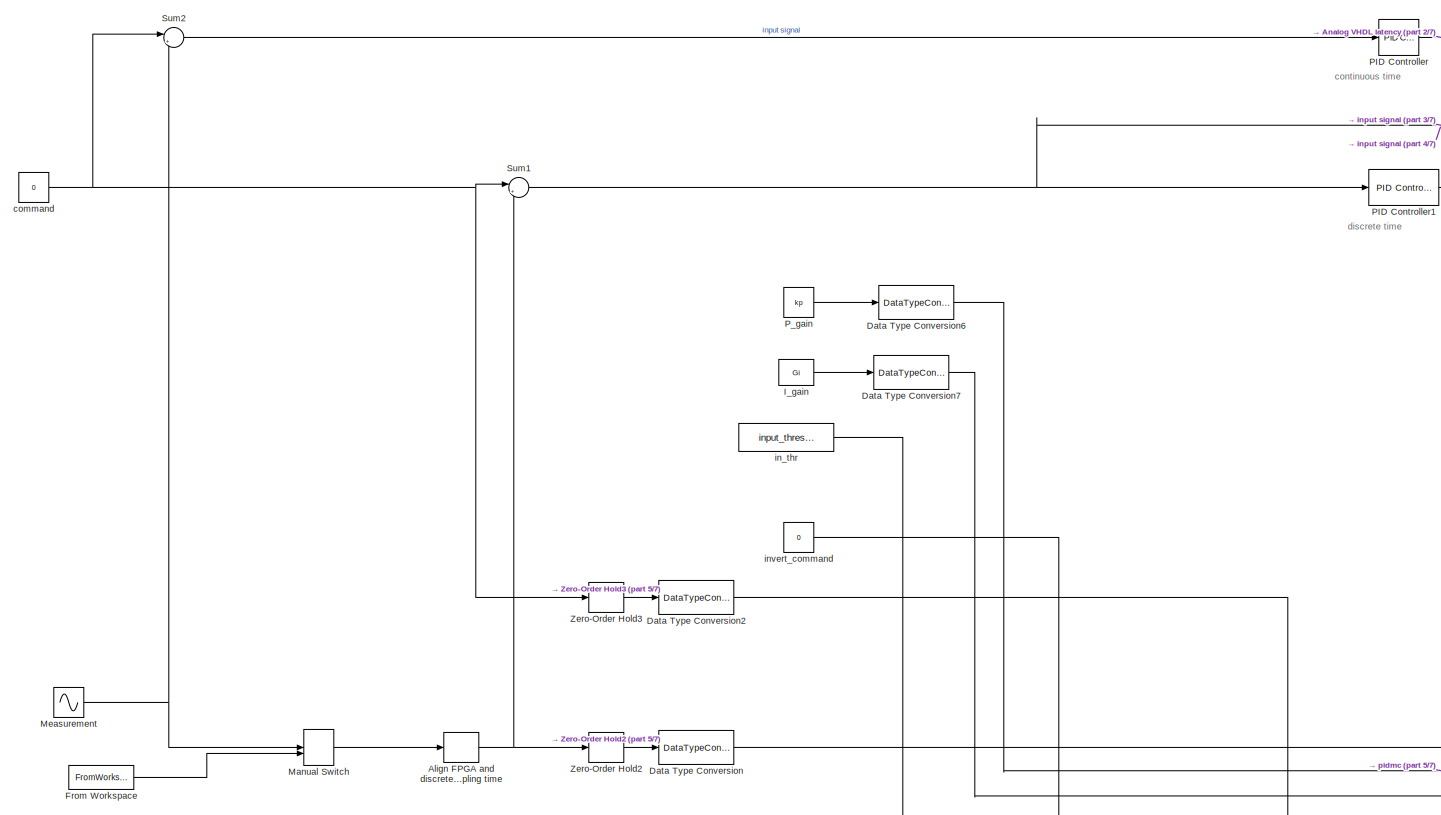
[diagram: root canvas - part 1/7, top left region]
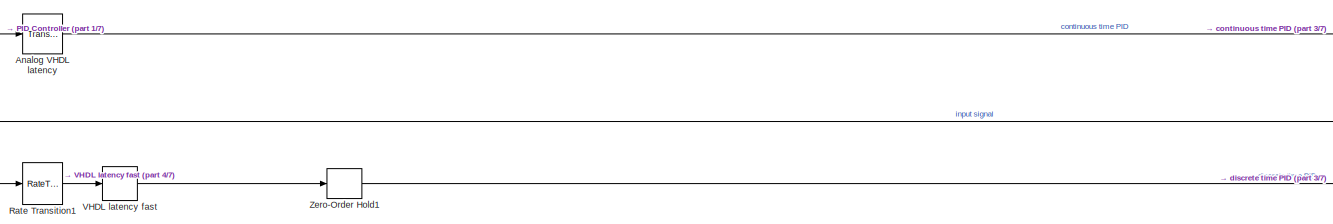
[diagram: root canvas - part 2/7, top center region]
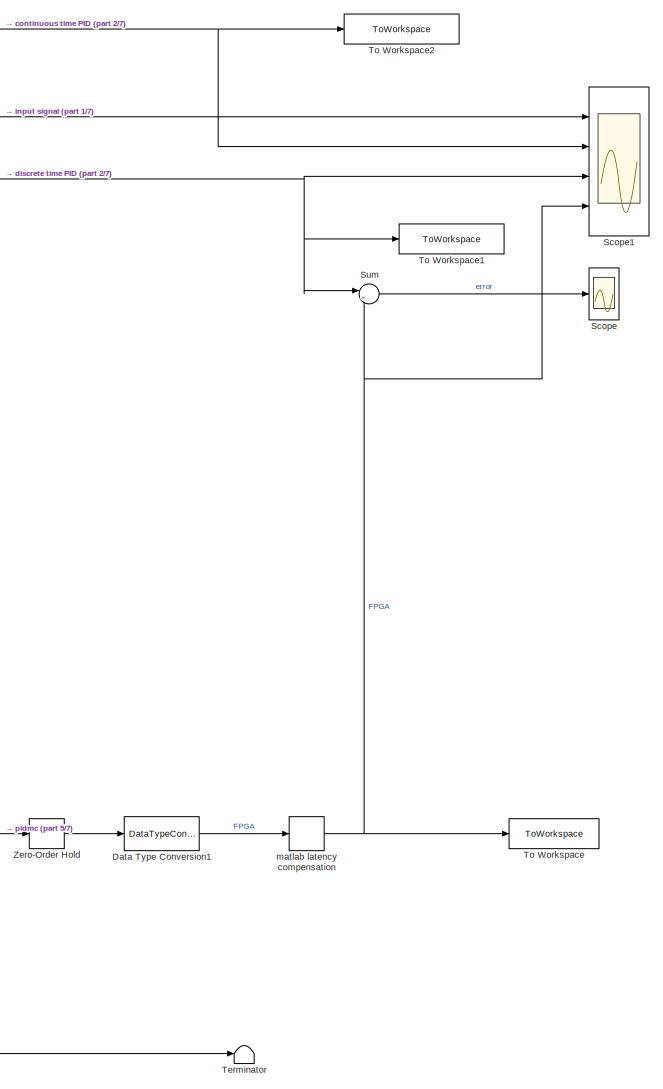
[diagram: root canvas - part 3/7, middle right region]
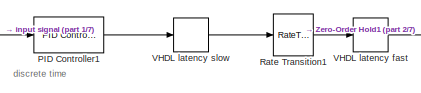
[diagram: root canvas - part 4/7, top center region]
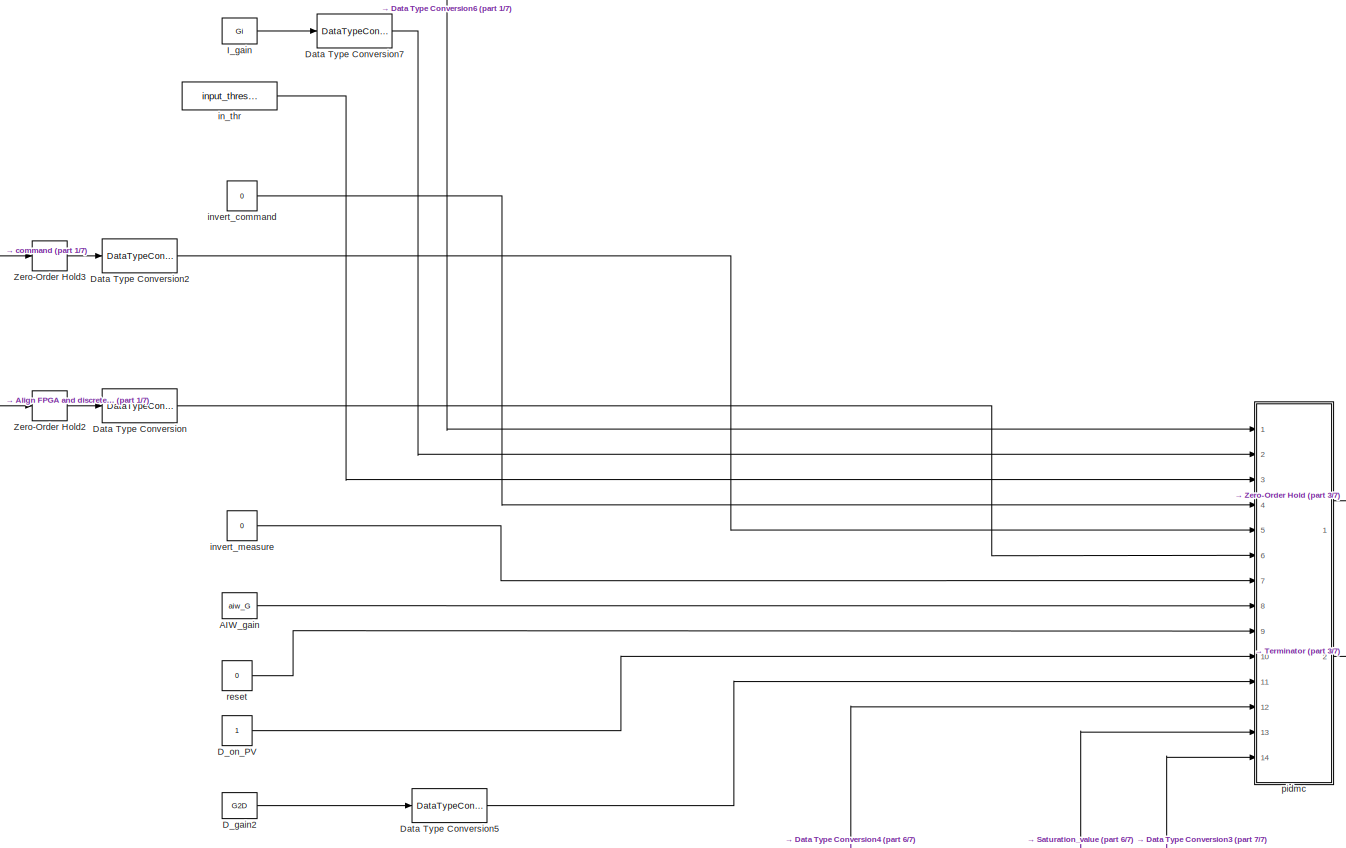
[diagram: root canvas - part 5/7, middle left region]
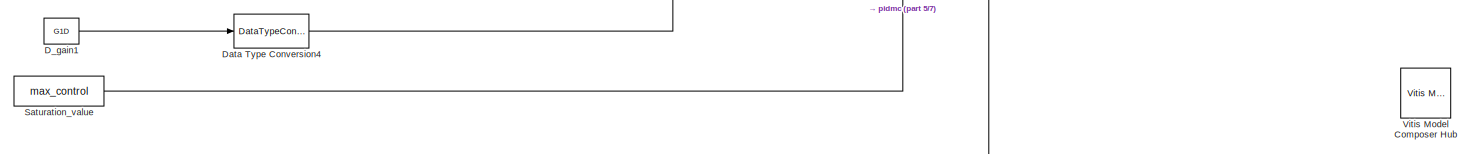
[diagram: root canvas - part 6/7, bottom center region]
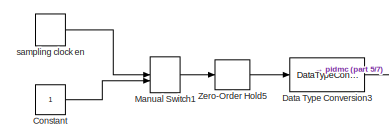
[diagram: root canvas - part 7/7, bottom left region]
MODEL slx_d7b5d70c6784
KIND model
CONFIG AbsTol = auto
CONFIG EnableMultiTasking = off
CONFIG FixedStep = auto
CONFIG MaxStep = auto
CONFIG MinStep = auto
CONFIG RelTol = 1e-3
CONFIG SampleTimeConstraint = Unconstrained
CONFIG SolverName = VariableStepAuto
CONFIG StartTime = 0.0
CONFIG StopTime = 0.05
BLOCK [Constant] AIW_gain
  OutDataTypeStr = fixdt(1,32,30)
  SampleTime = 1/(FPGA_CLK_MHZ*1.e6)
  Value = aiw_G
BLOCK [ZeroOrderHold] Align FPGA and discrete PID sampling time
  SampleTime = Ts
BLOCK [TransportDelay] Analog VHDL latency
  DelayTime = (VHDL_fast_latency_cycles)/maxSampleRate+(VHDL_slow_latency_cycles+matlab_discrete_PID_latency)/SampleRate
  Ports = [1, 1]
BLOCK [Constant] Constant
BLOCK [Constant] D_gain1
  OutDataTypeStr = double
  SampleTime = 1/(FPGA_CLK_MHZ*1.e6)
  Value = G1D
BLOCK [Constant] D_gain2
  OutDataTypeStr = double
  SampleTime = 1/(FPGA_CLK_MHZ*1.e6)
  Value = G2D
BLOCK [Constant] D_on_PV
  OutDataTypeStr = boolean
  SampleTime = 1/(FPGA_CLK_MHZ*1.e6)
BLOCK [DataTypeConversion] Data Type Conversion
  RndMeth = Floor
  SaturateOnIntegerOverflow = off
BLOCK [DataTypeConversion] Data Type Conversion1
  RndMeth = Floor
  SaturateOnIntegerOverflow = off
BLOCK [DataTypeConversion] Data Type Conversion2
  RndMeth = Floor
  SaturateOnIntegerOverflow = off
BLOCK [DataTypeConversion] Data Type Conversion3
  RndMeth = Floor
  SaturateOnIntegerOverflow = off
BLOCK [DataTypeConversion] Data Type Conversion4
  RndMeth = Floor
  SaturateOnIntegerOverflow = off
BLOCK [DataTypeConversion] Data Type Conversion5
  RndMeth = Floor
  SaturateOnIntegerOverflow = off
BLOCK [DataTypeConversion] Data Type Conversion6
  RndMeth = Floor
  SaturateOnIntegerOverflow = off
BLOCK [DataTypeConversion] Data Type Conversion7
  RndMeth = Floor
  SaturateOnIntegerOverflow = off
BLOCK [FromWorkspace] From Workspace
  Interpolate = off
  OutputAfterFinalValue = Setting to zero
  SampleTime = Ts
  VariableName = pidin
BLOCK [Constant] I_gain
  OutDataTypeStr = double
  SampleTime = 1/(FPGA_CLK_MHZ*1.e6)
  Value = Gi
BLOCK [ManualSwitch] Manual Switch
  CurrentSetting = 0
BLOCK [ManualSwitch] Manual Switch1
BLOCK [Sin] Measurement
  Amplitude = 0.01
  Frequency = 2*pi*21
  Phase = 0*pi
  Ports = [0, 1]
  SampleTime = 0
BLOCK [Reference] PID Controller  REF=slpidlib/PID Controller
  Ports = [1, 1]
  SourceBlock = slpidlib/PID Controller
  SourceProductBaseCode = SL
  SourceType = PID 1dof
BLOCK [Reference] PID Controller1  REF=slpidlib/PID Controller
  Ports = [1, 1]
  SourceBlock = slpidlib/PID Controller
  SourceProductBaseCode = SL
  SourceType = PID 1dof
BLOCK [Constant] P_gain
  OutDataTypeStr = double
  SampleTime = 1/(FPGA_CLK_MHZ*1.e6)
  Value = kp
BLOCK [RateTransition] Rate Transition1
  OutPortSampleTime = 1/maxSampleRate
BLOCK [Constant] Saturation_value
  OutDataTypeStr = fixdt(1,32,30)
  SampleTime = 1/(FPGA_CLK_MHZ*1.e6)
  Value = max_control
BLOCK [Scope] Scope
  Floating = off
  NumInputPorts = 1
  Ports = [1]
  ScopeSpecificationString = Simulink.scopes.TimeScopeBlockCfg('CurrentConfiguration', extmgr.ConfigurationSet(extmgr.Configuration('Core','General UI',true),extmgr.Configuration('Core','Source UI',true),extmgr.Configuration('Sources','WiredSimulink',true,'DataLoggingVariableName','ScopeData1'),extmgr.Configuration('Visuals','Time Domain',true,'SerializedDisplays',{struct('MinYLimReal','-0.00000000006','MaxYLimReal','0.000000...<+1512ch>
BLOCK [Scope] Scope1
  Floating = off
  NumInputPorts = 4
  Ports = [4]
  ScopeSpecificationString = Simulink.scopes.TimeScopeBlockCfg('CurrentConfiguration', extmgr.ConfigurationSet(extmgr.Configuration('Core','General UI',true),extmgr.Configuration('Core','Source UI',true),extmgr.Configuration('Sources','WiredSimulink',true),extmgr.Configuration('Visuals','Time Domain',true,'SerializedDisplays',{struct('MinYLimReal','-0.10553','MaxYLimReal','0.11555','YLabelReal','','MinYLimMag','0.00000','MaxY...<+1569ch>
BLOCK [Sum] Sum
  Inputs = |+-
  Ports = [2, 1]
BLOCK [Sum] Sum1
  Inputs = |+-
  Ports = [2, 1]
BLOCK [Sum] Sum2
  Inputs = |+-
  Ports = [2, 1]
BLOCK [Terminator] Terminator
BLOCK [ToWorkspace] To Workspace
  Decimation = 1.e6*FPGA_CLK_MHZ/SampleRate
  FixptAsFi = on
  MaxDataPoints = inf
  Ports = [1]
  SampleTime = -1
  VariableName = FPGA_sim
BLOCK [ToWorkspace] To Workspace1
  Decimation = 1.e6*FPGA_CLK_MHZ/SampleRate
  FixptAsFi = on
  MaxDataPoints = inf
  Ports = [1]
  SampleTime = -1
  VariableName = idealPID_discrete
BLOCK [ToWorkspace] To Workspace2
  FixptAsFi = on
  MaxDataPoints = inf
  Ports = [1]
  SampleTime = -1
  VariableName = idealPID_continuous
BLOCK [Delay] VHDL latency fast
  DelayLength = VHDL_fast_latency_cycles
  InputPortMap = u0
  Ports = [1, 1]
BLOCK [Delay] VHDL latency slow
  DelayLength = VHDL_slow_latency_cycles
  InputPortMap = u0
  Ports = [1, 1]
BLOCK [Reference] Vitis Model Composer Hub  REF=vmcUtilities/Vitis Model Composer Hub
  Ports = []
  SourceBlock = vmcUtilities/Vitis Model Composer Hub
  SourceType = VMC Hub
  Tag = genX
  UserDataPersistent = on
BLOCK [ZeroOrderHold] Zero-Order Hold
  SampleTime = 1/(FPGA_CLK_MHZ*1.e6)
BLOCK [ZeroOrderHold] Zero-Order Hold1
  SampleTime = 1/(FPGA_CLK_MHZ*1.e6)
BLOCK [ZeroOrderHold] Zero-Order Hold2
  SampleTime = 1/(FPGA_CLK_MHZ*1.e6)
BLOCK [ZeroOrderHold] Zero-Order Hold3
  SampleTime = 1/(FPGA_CLK_MHZ*1.e6)
BLOCK [ZeroOrderHold] Zero-Order Hold5
  SampleTime = 1/(FPGA_CLK_MHZ*1.e6)
BLOCK [Constant] command
  OutDataTypeStr = double
  SampleTime = 0
  Value = 0
BLOCK [Constant] in_thr
  OutDataTypeStr = fixdt(1,32,30)
  SampleTime = 1/(FPGA_CLK_MHZ*1.e6)
  Value = input_threshold
BLOCK [Constant] invert_command
  OutDataTypeStr = boolean
  SampleTime = 1/(FPGA_CLK_MHZ*1.e6)
  Value = 0
BLOCK [Constant] invert_measure
  OutDataTypeStr = boolean
  SampleTime = 1/(FPGA_CLK_MHZ*1.e6)
  Value = 0
BLOCK [Delay] matlab latency compensation
  DelayLength = matlab_discrete_PID_latency*FPGA_CLK_MHZ*1.e6/SampleRate
  InputPortMap = u0
  Ports = [1, 1]
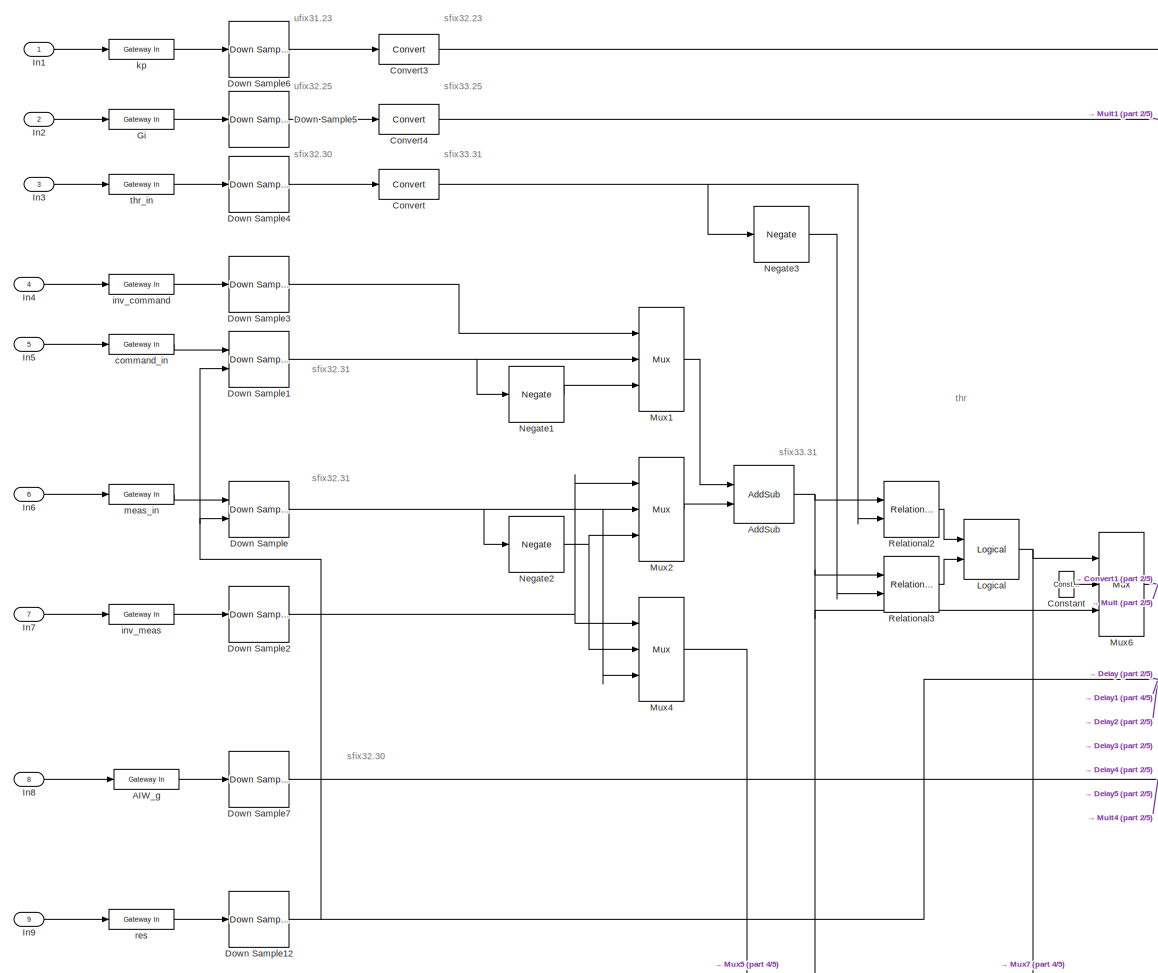
[diagram: pidmc - part 1/5, top left region]
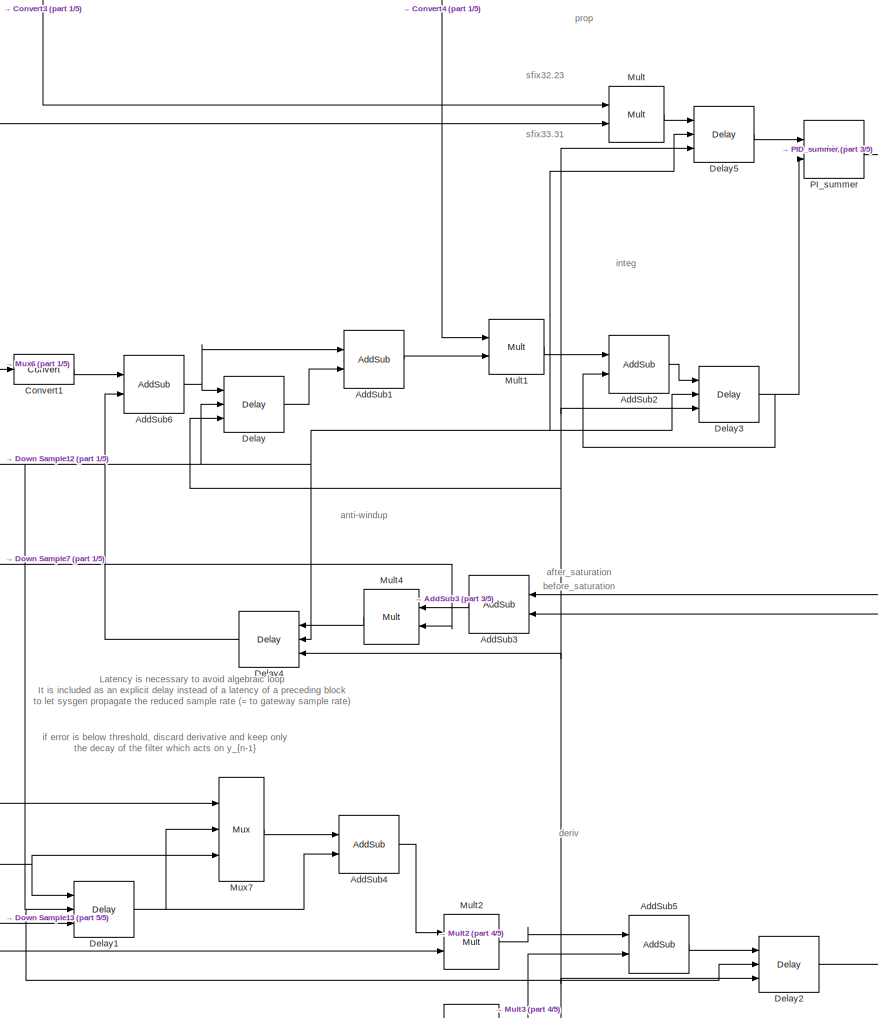
[diagram: pidmc - part 2/5, central region]
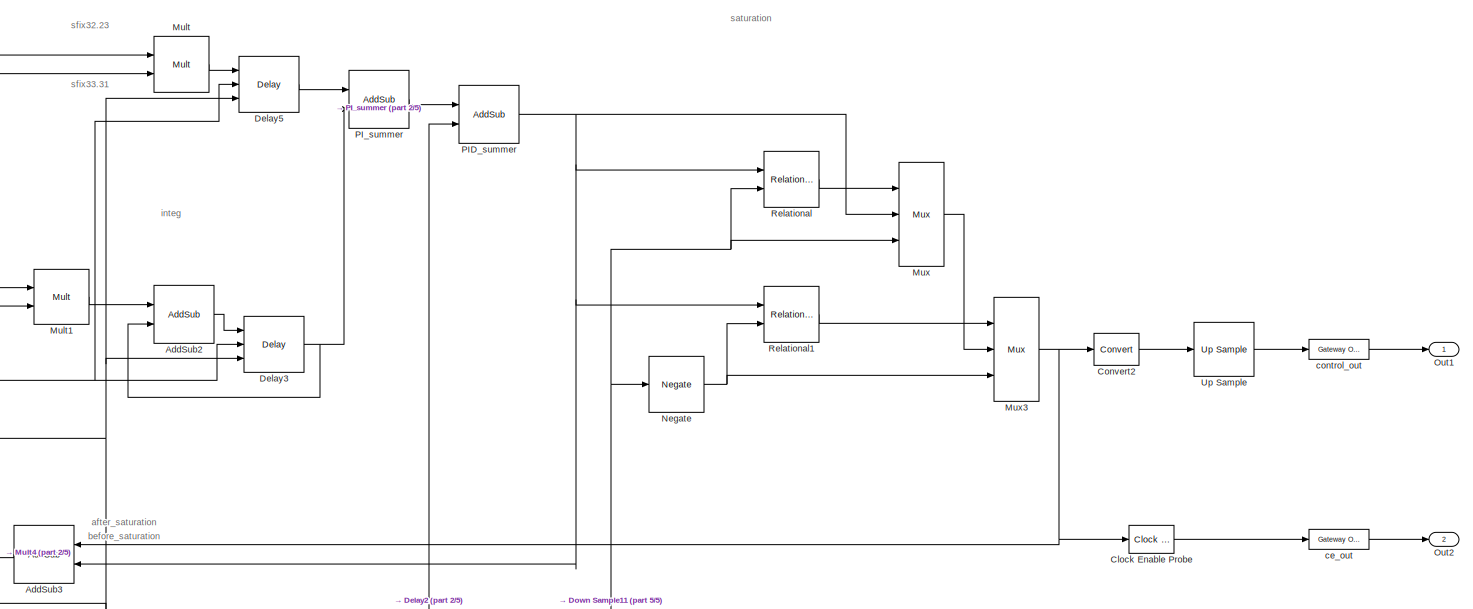
[diagram: pidmc - part 3/5, middle right region]
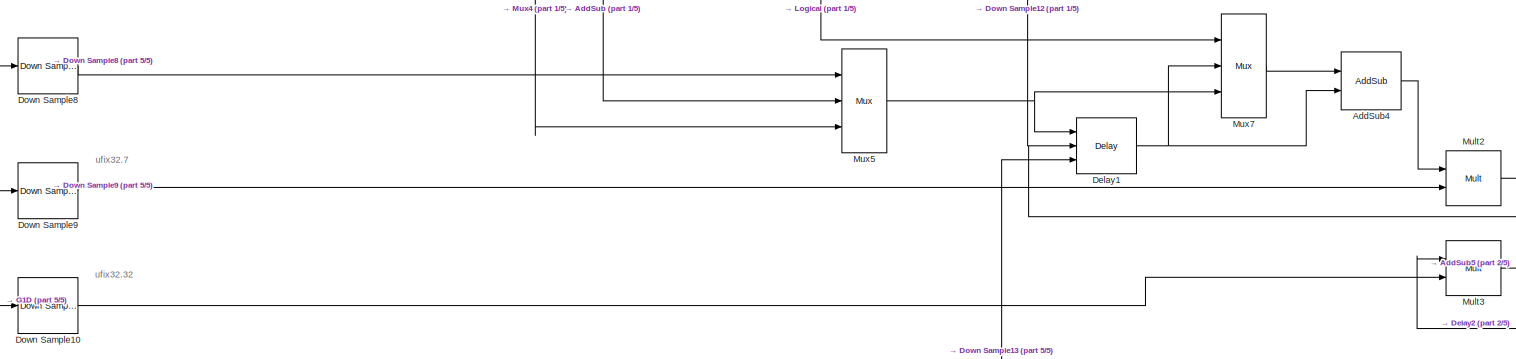
[diagram: pidmc - part 4/5, bottom left region]
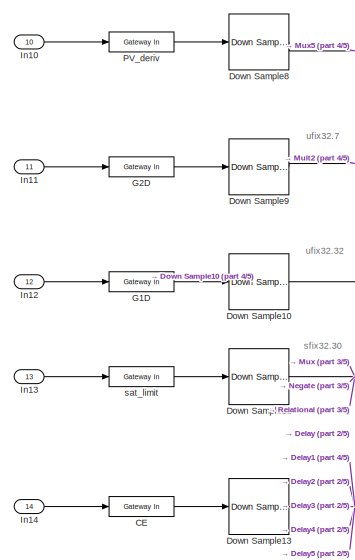
[diagram: pidmc - part 5/5, bottom left region]
BLOCK [SubSystem] pidmc
  Ports = [14, 2]
  RequestExecContextInheritance = off
BLOCK [Reference] pidmc/AIW_g  REF=hdlBasic/Gateway In
  Ports = [1, 1]
  SourceBlock = hdlBasic/Gateway In
  SourceType = Gateway In Block
BLOCK [Reference] pidmc/AddSub  REF=hdlBasic/AddSub
  Ports = [2, 1]
  SourceBlock = hdlBasic/AddSub
  SourceType = Adder/Subtracter Block
BLOCK [Reference] pidmc/AddSub1  REF=hdlBasic/AddSub
  Ports = [2, 1]
  SourceBlock = hdlBasic/AddSub
  SourceType = Adder/Subtracter Block
BLOCK [Reference] pidmc/AddSub2  REF=hdlBasic/AddSub
  Ports = [2, 1]
  SourceBlock = hdlBasic/AddSub
  SourceType = Adder/Subtracter Block
BLOCK [Reference] pidmc/AddSub3  REF=hdlBasic/AddSub
  Ports = [2, 1]
  SourceBlock = hdlBasic/AddSub
  SourceType = Adder/Subtracter Block
BLOCK [Reference] pidmc/AddSub4  REF=hdlBasic/AddSub
  Ports = [2, 1]
  SourceBlock = hdlBasic/AddSub
  SourceType = Adder/Subtracter Block
BLOCK [Reference] pidmc/AddSub5  REF=hdlBasic/AddSub
  Ports = [2, 1]
  SourceBlock = hdlBasic/AddSub
  SourceType = Adder/Subtracter Block
BLOCK [Reference] pidmc/AddSub6  REF=hdlBasic/AddSub
  Ports = [2, 1]
  SourceBlock = hdlBasic/AddSub
  SourceType = Adder/Subtracter Block
BLOCK [Reference] pidmc/CE  REF=hdlBasic/Gateway In
  Ports = [1, 1]
  SourceBlock = hdlBasic/Gateway In
  SourceType = Gateway In Block
BLOCK [Reference] pidmc/Clock Enable Probe  REF=hdlUtilities/Clock Enable Probe
  Ports = [1, 1]
  SourceBlock = hdlUtilities/Clock Enable Probe
  SourceType = Xilinx Clock Enable Probe Block
BLOCK [Reference] pidmc/Constant  REF=hdlBasic/Constant
  Ports = [0, 1]
  SourceBlock = hdlBasic/Constant
  SourceType = Constant Block Block
BLOCK [Reference] pidmc/Convert  REF=hdlBasic/Convert
  Ports = [1, 1]
  SourceBlock = hdlBasic/Convert
  SourceType = Type Converter Block
BLOCK [Reference] pidmc/Convert1  REF=hdlBasic/Convert
  Ports = [1, 1]
  SourceBlock = hdlBasic/Convert
  SourceType = Type Converter Block
BLOCK [Reference] pidmc/Convert2  REF=hdlBasic/Convert
  Ports = [1, 1]
  SourceBlock = hdlBasic/Convert
  SourceType = Type Converter Block
BLOCK [Reference] pidmc/Convert3  REF=hdlBasic/Convert
  Ports = [1, 1]
  SourceBlock = hdlBasic/Convert
  SourceType = Type Converter Block
BLOCK [Reference] pidmc/Convert4  REF=hdlBasic/Convert
  Ports = [1, 1]
  SourceBlock = hdlBasic/Convert
  SourceType = Type Converter Block
BLOCK [Reference] pidmc/Delay  REF=hdlBasic/Delay
  Ports = [3, 1]
  SourceBlock = hdlBasic/Delay
  SourceType = Delay Block
BLOCK [Reference] pidmc/Delay1  REF=hdlBasic/Delay
  Ports = [3, 1]
  SourceBlock = hdlBasic/Delay
  SourceType = Delay Block
BLOCK [Reference] pidmc/Delay2  REF=hdlBasic/Delay
  Ports = [3, 1]
  SourceBlock = hdlBasic/Delay
  SourceType = Delay Block
BLOCK [Reference] pidmc/Delay3  REF=hdlBasic/Delay
  Ports = [3, 1]
  SourceBlock = hdlBasic/Delay
  SourceType = Delay Block
BLOCK [Reference] pidmc/Delay4  REF=hdlBasic/Delay
  Ports = [3, 1]
  SourceBlock = hdlBasic/Delay
  SourceType = Delay Block
BLOCK [Reference] pidmc/Delay5  REF=hdlBasic/Delay
  Ports = [3, 1]
  SourceBlock = hdlBasic/Delay
  SourceType = Delay Block
BLOCK [Reference] pidmc/Down Sample  REF=hdlBasic/Down Sample
  Ports = [2, 1]
  SourceBlock = hdlBasic/Down Sample
  SourceType = Down Sampler Block
BLOCK [Reference] pidmc/Down Sample1  REF=hdlBasic/Down Sample
  Ports = [2, 1]
  SourceBlock = hdlBasic/Down Sample
  SourceType = Down Sampler Block
BLOCK [Reference] pidmc/Down Sample10  REF=hdlBasic/Down Sample
  Ports = [1, 1]
  SourceBlock = hdlBasic/Down Sample
  SourceType = Down Sampler Block
BLOCK [Reference] pidmc/Down Sample11  REF=hdlBasic/Down Sample
  Ports = [1, 1]
  SourceBlock = hdlBasic/Down Sample
  SourceType = Down Sampler Block
BLOCK [Reference] pidmc/Down Sample12  REF=hdlBasic/Down Sample
  Ports = [1, 1]
  SourceBlock = hdlBasic/Down Sample
  SourceType = Down Sampler Block
BLOCK [Reference] pidmc/Down Sample13  REF=hdlBasic/Down Sample
  Ports = [1, 1]
  SourceBlock = hdlBasic/Down Sample
  SourceType = Down Sampler Block
BLOCK [Reference] pidmc/Down Sample2  REF=hdlBasic/Down Sample
  Ports = [1, 1]
  SourceBlock = hdlBasic/Down Sample
  SourceType = Down Sampler Block
BLOCK [Reference] pidmc/Down Sample3  REF=hdlBasic/Down Sample
  Ports = [1, 1]
  SourceBlock = hdlBasic/Down Sample
  SourceType = Down Sampler Block
BLOCK [Reference] pidmc/Down Sample4  REF=hdlBasic/Down Sample
  Ports = [1, 1]
  SourceBlock = hdlBasic/Down Sample
  SourceType = Down Sampler Block
BLOCK [Reference] pidmc/Down Sample5  REF=hdlBasic/Down Sample
  Ports = [1, 1]
  SourceBlock = hdlBasic/Down Sample
  SourceType = Down Sampler Block
BLOCK [Reference] pidmc/Down Sample6  REF=hdlBasic/Down Sample
  Ports = [1, 1]
  SourceBlock = hdlBasic/Down Sample
  SourceType = Down Sampler Block
BLOCK [Reference] pidmc/Down Sample7  REF=hdlBasic/Down Sample
  Ports = [1, 1]
  SourceBlock = hdlBasic/Down Sample
  SourceType = Down Sampler Block
BLOCK [Reference] pidmc/Down Sample8  REF=hdlBasic/Down Sample
  Ports = [1, 1]
  SourceBlock = hdlBasic/Down Sample
  SourceType = Down Sampler Block
BLOCK [Reference] pidmc/Down Sample9  REF=hdlBasic/Down Sample
  Ports = [1, 1]
  SourceBlock = hdlBasic/Down Sample
  SourceType = Down Sampler Block
BLOCK [Reference] pidmc/G1D  REF=hdlBasic/Gateway In
  Ports = [1, 1]
  SourceBlock = hdlBasic/Gateway In
  SourceType = Gateway In Block
BLOCK [Reference] pidmc/G2D  REF=hdlBasic/Gateway In
  Ports = [1, 1]
  SourceBlock = hdlBasic/Gateway In
  SourceType = Gateway In Block
BLOCK [Reference] pidmc/Gi  REF=hdlBasic/Gateway In
  Ports = [1, 1]
  SourceBlock = hdlBasic/Gateway In
  SourceType = Gateway In Block
BLOCK [Inport] pidmc/In1
  OutDataTypeStr = fixdt(0,31,23)
BLOCK [Inport] pidmc/In10
  Port = 10
BLOCK [Inport] pidmc/In11
  OutDataTypeStr = fixdt(0,32,7)
  Port = 11
BLOCK [Inport] pidmc/In12
  OutDataTypeStr = fixdt(0,32,32)
  Port = 12
BLOCK [Inport] pidmc/In13
  Port = 13
BLOCK [Inport] pidmc/In14
  OutDataTypeStr = boolean
  Port = 14
BLOCK [Inport] pidmc/In2
  OutDataTypeStr = fixdt(0,32,25)
  Port = 2
BLOCK [Inport] pidmc/In3
  Port = 3
BLOCK [Inport] pidmc/In4
  Port = 4
BLOCK [Inport] pidmc/In5
  OutDataTypeStr = fixdt(1,32,31)
  Port = 5
BLOCK [Inport] pidmc/In6
  OutDataTypeStr = fixdt(1,32,31)
  Port = 6
BLOCK [Inport] pidmc/In7
  Port = 7
BLOCK [Inport] pidmc/In8
  Port = 8
BLOCK [Inport] pidmc/In9
  Port = 9
BLOCK [Reference] pidmc/Logical  REF=hdlBasic/Logical
  Ports = [2, 1]
  SourceBlock = hdlBasic/Logical
  SourceType = Logical Block Block
BLOCK [Reference] pidmc/Mult  REF=hdlBasic/Mult
  Ports = [2, 1]
  SourceBlock = hdlBasic/Mult
  SourceType = Multiplier Block
BLOCK [Reference] pidmc/Mult1  REF=hdlBasic/Mult
  Ports = [2, 1]
  SourceBlock = hdlBasic/Mult
  SourceType = Multiplier Block
BLOCK [Reference] pidmc/Mult2  REF=hdlBasic/Mult
  Ports = [2, 1]
  SourceBlock = hdlBasic/Mult
  SourceType = Multiplier Block
BLOCK [Reference] pidmc/Mult3  REF=hdlBasic/Mult
  Ports = [2, 1]
  SourceBlock = hdlBasic/Mult
  SourceType = Multiplier Block
BLOCK [Reference] pidmc/Mult4  REF=hdlBasic/Mult
  Ports = [2, 1]
  SourceBlock = hdlBasic/Mult
  SourceType = Multiplier Block
BLOCK [Reference] pidmc/Mux  REF=hdlBasic/Mux
  Ports = [3, 1]
  SourceBlock = hdlBasic/Mux
  SourceType = Bus Multiplexer Block
BLOCK [Reference] pidmc/Mux1  REF=hdlBasic/Mux
  Ports = [3, 1]
  SourceBlock = hdlBasic/Mux
  SourceType = Bus Multiplexer Block
BLOCK [Reference] pidmc/Mux2  REF=hdlBasic/Mux
  Ports = [3, 1]
  SourceBlock = hdlBasic/Mux
  SourceType = Bus Multiplexer Block
BLOCK [Reference] pidmc/Mux3  REF=hdlBasic/Mux
  Ports = [3, 1]
  SourceBlock = hdlBasic/Mux
  SourceType = Bus Multiplexer Block
BLOCK [Reference] pidmc/Mux4  REF=hdlBasic/Mux
  Ports = [3, 1]
  SourceBlock = hdlBasic/Mux
  SourceType = Bus Multiplexer Block
BLOCK [Reference] pidmc/Mux5  REF=hdlBasic/Mux
  Ports = [3, 1]
  SourceBlock = hdlBasic/Mux
  SourceType = Bus Multiplexer Block
BLOCK [Reference] pidmc/Mux6  REF=hdlBasic/Mux
  Ports = [3, 1]
  SourceBlock = hdlBasic/Mux
  SourceType = Bus Multiplexer Block
BLOCK [Reference] pidmc/Mux7  REF=hdlBasic/Mux
  Ports = [3, 1]
  SourceBlock = hdlBasic/Mux
  SourceType = Bus Multiplexer Block
BLOCK [Reference] pidmc/Negate  REF=hdlBasic/Negate
  Ports = [1, 1]
  SourceBlock = hdlBasic/Negate
  SourceType = Negate Block Block
BLOCK [Reference] pidmc/Negate1  REF=hdlBasic/Negate
  Ports = [1, 1]
  SourceBlock = hdlBasic/Negate
  SourceType = Negate Block Block
BLOCK [Reference] pidmc/Negate2  REF=hdlBasic/Negate
  Ports = [1, 1]
  SourceBlock = hdlBasic/Negate
  SourceType = Negate Block Block
BLOCK [Reference] pidmc/Negate3  REF=hdlBasic/Negate
  Ports = [1, 1]
  SourceBlock = hdlBasic/Negate
  SourceType = Negate Block Block
BLOCK [Outport] pidmc/Out1
BLOCK [Outport] pidmc/Out2
  Port = 2
BLOCK [Reference] pidmc/PID_summer  REF=hdlBasic/AddSub
  Ports = [2, 1]
  SourceBlock = hdlBasic/AddSub
  SourceType = Adder/Subtracter Block
BLOCK [Reference] pidmc/PI_summer  REF=hdlBasic/AddSub
  Ports = [2, 1]
  SourceBlock = hdlBasic/AddSub
  SourceType = Adder/Subtracter Block
BLOCK [Reference] pidmc/PV_deriv  REF=hdlBasic/Gateway In
  Ports = [1, 1]
  SourceBlock = hdlBasic/Gateway In
  SourceType = Gateway In Block
BLOCK [Reference] pidmc/Relational  REF=hdlBasic/Relational
  Ports = [2, 1]
  SourceBlock = hdlBasic/Relational
  SourceType = Arithmetic Relational Operator Block
BLOCK [Reference] pidmc/Relational1  REF=hdlBasic/Relational
  Ports = [2, 1]
  SourceBlock = hdlBasic/Relational
  SourceType = Arithmetic Relational Operator Block
BLOCK [Reference] pidmc/Relational2  REF=hdlBasic/Relational
  Ports = [2, 1]
  SourceBlock = hdlBasic/Relational
  SourceType = Arithmetic Relational Operator Block
BLOCK [Reference] pidmc/Relational3  REF=hdlBasic/Relational
  Ports = [2, 1]
  SourceBlock = hdlBasic/Relational
  SourceType = Arithmetic Relational Operator Block
BLOCK [Reference] pidmc/Up Sample  REF=hdlBasic/Up Sample
  Ports = [1, 1]
  SourceBlock = hdlBasic/Up Sample
  SourceType = Up Sampler Block
BLOCK [Reference] pidmc/ce_out  REF=hdlBasic/Gateway Out
  Ports = [1, 1]
  SourceBlock = hdlBasic/Gateway Out
  SourceType = Gateway Out Block
BLOCK [Reference] pidmc/command_in  REF=hdlBasic/Gateway In
  Ports = [1, 1]
  SourceBlock = hdlBasic/Gateway In
  SourceType = Gateway In Block
BLOCK [Reference] pidmc/control_out  REF=hdlBasic/Gateway Out
  Ports = [1, 1]
  SourceBlock = hdlBasic/Gateway Out
  SourceType = Gateway Out Block
BLOCK [Reference] pidmc/inv_command  REF=hdlBasic/Gateway In
  Ports = [1, 1]
  SourceBlock = hdlBasic/Gateway In
  SourceType = Gateway In Block
BLOCK [Reference] pidmc/inv_meas  REF=hdlBasic/Gateway In
  Ports = [1, 1]
  SourceBlock = hdlBasic/Gateway In
  SourceType = Gateway In Block
BLOCK [Reference] pidmc/kp  REF=hdlBasic/Gateway In
  Ports = [1, 1]
  SourceBlock = hdlBasic/Gateway In
  SourceType = Gateway In Block
BLOCK [Reference] pidmc/meas_in  REF=hdlBasic/Gateway In
  Ports = [1, 1]
  SourceBlock = hdlBasic/Gateway In
  SourceType = Gateway In Block
BLOCK [Reference] pidmc/res  REF=hdlBasic/Gateway In
  Ports = [1, 1]
  SourceBlock = hdlBasic/Gateway In
  SourceType = Gateway In Block
BLOCK [Reference] pidmc/sat_limit  REF=hdlBasic/Gateway In
  Ports = [1, 1]
  SourceBlock = hdlBasic/Gateway In
  SourceType = Gateway In Block
BLOCK [Reference] pidmc/thr_in  REF=hdlBasic/Gateway In
  Ports = [1, 1]
  SourceBlock = hdlBasic/Gateway In
  SourceType = Gateway In Block
BLOCK [Constant] reset
  OutDataTypeStr = boolean
  SampleTime = 1/(FPGA_CLK_MHZ*1.e6)
  Value = 0
BLOCK [DiscretePulseGenerator] sampling clock en
  Period = Ts
  Ports = [0, 1]
  PulseType = Time based
  PulseWidth = 100/(Ts*maxSampleRate)
ANNOTATION (root): continuous time
ANNOTATION (root): discrete time
ANNOTATION pidmc: anti-windup
ANNOTATION pidmc: deriv
ANNOTATION pidmc: integ
ANNOTATION pidmc: prop
ANNOTATION pidmc: saturation
ANNOTATION pidmc: thr
ANNOTATION pidmc: Latency is necessary to avoid algebraic loop It is included as an explicit delay instead of a latency of a preceding block to let sysgen propagate the reduced sample rate (= to gateway sample rate)
ANNOTATION pidmc: after_saturation
ANNOTATION pidmc: before_saturation
ANNOTATION pidmc: if error is below threshold, discard derivative and keep only the decay of the filter which acts on y_{n-1}
ANNOTATION pidmc: sfix32.23
ANNOTATION pidmc: sfix32.30
ANNOTATION pidmc: sfix32.31
ANNOTATION pidmc: sfix33.25
ANNOTATION pidmc: sfix33.31
ANNOTATION pidmc: ufix31.23
ANNOTATION pidmc: ufix32.25
ANNOTATION pidmc: ufix32.32
ANNOTATION pidmc: ufix32.7
LINE AIW_gain:1 -> pidmc:8
NET Align FPGA and discrete PID sampling time:1 -> Sum1:2, Zero-Order Hold2:1
NET Analog VHDL latency:1 -> Scope1:2, To Workspace2:1
LINE Constant:1 -> Manual Switch1:2
LINE D_gain1:1 -> Data Type Conversion4:1
LINE D_gain2:1 -> Data Type Conversion5:1
LINE D_on_PV:1 -> pidmc:10
LINE Data Type Conversion1:1 -> matlab latency compensation:1
LINE Data Type Conversion2:1 -> pidmc:5
LINE Data Type Conversion3:1 -> pidmc:14
LINE Data Type Conversion4:1 -> pidmc:12
LINE Data Type Conversion5:1 -> pidmc:11
LINE Data Type Conversion6:1 -> pidmc:1
LINE Data Type Conversion7:1 -> pidmc:2
LINE Data Type Conversion:1 -> pidmc:6
LINE From Workspace:1 -> Manual Switch:2
LINE I_gain:1 -> Data Type Conversion7:1
LINE Manual Switch1:1 -> Zero-Order Hold5:1
LINE Manual Switch:1 -> Align FPGA and discrete PID sampling time:1
NET Measurement:1 -> Manual Switch:1, Sum2:2
LINE PID Controller1:1 -> VHDL latency slow:1
LINE PID Controller:1 -> Analog VHDL latency:1
LINE P_gain:1 -> Data Type Conversion6:1
LINE Rate Transition1:1 -> VHDL latency fast:1
LINE Saturation_value:1 -> pidmc:13
NET Sum1:1 -> PID Controller1:1, Scope1:1
LINE Sum2:1 -> PID Controller:1
LINE Sum:1 -> Scope:1
LINE VHDL latency fast:1 -> Zero-Order Hold1:1
LINE VHDL latency slow:1 -> Rate Transition1:1
NET Zero-Order Hold1:1 -> Scope1:3, Sum:1, To Workspace1:1
LINE Zero-Order Hold2:1 -> Data Type Conversion:1
LINE Zero-Order Hold3:1 -> Data Type Conversion2:1
LINE Zero-Order Hold5:1 -> Data Type Conversion3:1
LINE Zero-Order Hold:1 -> Data Type Conversion1:1
NET command:1 -> Sum1:1, Sum2:1, Zero-Order Hold3:1
LINE in_thr:1 -> pidmc:3
LINE invert_command:1 -> pidmc:4
LINE invert_measure:1 -> pidmc:7
NET matlab latency compensation:1 -> Scope1:4, Sum:2, To Workspace:1
LINE pidmc/AIW_g:1 -> pidmc/Down Sample7:1
LINE pidmc/AddSub1:1 -> pidmc/Mult1:2
LINE pidmc/AddSub2:1 -> pidmc/Delay3:1
LINE pidmc/AddSub3:1 -> pidmc/Mult4:1
LINE pidmc/AddSub4:1 -> pidmc/Mult2:1
LINE pidmc/AddSub5:1 -> pidmc/Delay2:1
NET pidmc/AddSub6:1 -> pidmc/AddSub1:1, pidmc/Delay:1
NET pidmc/AddSub:1 -> pidmc/Mux5:2, pidmc/Mux6:3, pidmc/Relational2:1, pidmc/Relational3:1
LINE pidmc/CE:1 -> pidmc/Down Sample13:1
LINE pidmc/Clock Enable Probe:1 -> pidmc/ce_out:1
LINE pidmc/Constant:1 -> pidmc/Mux6:2
LINE pidmc/Convert1:1 -> pidmc/AddSub6:1
LINE pidmc/Convert2:1 -> pidmc/Up Sample:1
LINE pidmc/Convert3:1 -> pidmc/Mult:1
LINE pidmc/Convert4:1 -> pidmc/Mult1:1
NET pidmc/Convert:1 -> pidmc/Negate3:1, pidmc/Relational2:2
NET pidmc/Delay1:1 -> pidmc/AddSub4:2, pidmc/Mux7:2
NET pidmc/Delay2:1 -> pidmc/Mult3:1, pidmc/PID_summer:2
NET pidmc/Delay3:1 -> pidmc/AddSub2:2, pidmc/PI_summer:2
LINE pidmc/Delay4:1 -> pidmc/AddSub6:2
LINE pidmc/Delay5:1 -> pidmc/PI_summer:1
LINE pidmc/Delay:1 -> pidmc/AddSub1:2
LINE pidmc/Down Sample10:1 -> pidmc/Mult3:2
NET pidmc/Down Sample11:1 -> pidmc/Mux:3, pidmc/Negate:1, pidmc/Relational:2
NET pidmc/Down Sample12:1 -> pidmc/Delay1:2, pidmc/Delay2:2, pidmc/Delay3:2, pidmc/Delay4:2, pidmc/Delay5:2, pidmc/Delay:2, pidmc/Down Sample1:2, pidmc/Down Sample:2
NET pidmc/Down Sample13:1 -> pidmc/Delay1:3, pidmc/Delay2:3, pidmc/Delay3:3, pidmc/Delay4:3, pidmc/Delay5:3, pidmc/Delay:3
NET pidmc/Down Sample1:1 -> pidmc/Mux1:2, pidmc/Negate1:1
NET pidmc/Down Sample2:1 -> pidmc/Mux2:1, pidmc/Mux4:1
LINE pidmc/Down Sample3:1 -> pidmc/Mux1:1
LINE pidmc/Down Sample4:1 -> pidmc/Convert:1
LINE pidmc/Down Sample5:1 -> pidmc/Convert4:1
LINE pidmc/Down Sample6:1 -> pidmc/Convert3:1
LINE pidmc/Down Sample7:1 -> pidmc/Mult4:2
LINE pidmc/Down Sample8:1 -> pidmc/Mux5:1
LINE pidmc/Down Sample9:1 -> pidmc/Mult2:2
NET pidmc/Down Sample:1 -> pidmc/Mux2:2, pidmc/Mux4:3, pidmc/Negate2:1
LINE pidmc/G1D:1 -> pidmc/Down Sample10:1
LINE pidmc/G2D:1 -> pidmc/Down Sample9:1
LINE pidmc/Gi:1 -> pidmc/Down Sample5:1
LINE pidmc/In10:1 -> pidmc/PV_deriv:1
LINE pidmc/In11:1 -> pidmc/G2D:1
LINE pidmc/In12:1 -> pidmc/G1D:1
LINE pidmc/In13:1 -> pidmc/sat_limit:1
LINE pidmc/In14:1 -> pidmc/CE:1
LINE pidmc/In1:1 -> pidmc/kp:1
LINE pidmc/In2:1 -> pidmc/Gi:1
LINE pidmc/In3:1 -> pidmc/thr_in:1
LINE pidmc/In4:1 -> pidmc/inv_command:1
LINE pidmc/In5:1 -> pidmc/command_in:1
LINE pidmc/In6:1 -> pidmc/meas_in:1
LINE pidmc/In7:1 -> pidmc/inv_meas:1
LINE pidmc/In8:1 -> pidmc/AIW_g:1
LINE pidmc/In9:1 -> pidmc/res:1
NET pidmc/Logical:1 -> pidmc/Mux6:1, pidmc/Mux7:1
LINE pidmc/Mult1:1 -> pidmc/AddSub2:1
LINE pidmc/Mult2:1 -> pidmc/AddSub5:1
LINE pidmc/Mult3:1 -> pidmc/AddSub5:2
LINE pidmc/Mult4:1 -> pidmc/Delay4:1
LINE pidmc/Mult:1 -> pidmc/Delay5:1
LINE pidmc/Mux1:1 -> pidmc/AddSub:1
LINE pidmc/Mux2:1 -> pidmc/AddSub:2
NET pidmc/Mux3:1 -> pidmc/AddSub3:1, pidmc/Clock Enable Probe:1, pidmc/Convert2:1
LINE pidmc/Mux4:1 -> pidmc/Mux5:3
NET pidmc/Mux5:1 -> pidmc/Delay1:1, pidmc/Mux7:3
NET pidmc/Mux6:1 -> pidmc/Convert1:1, pidmc/Mult:2
LINE pidmc/Mux7:1 -> pidmc/AddSub4:1
LINE pidmc/Mux:1 -> pidmc/Mux3:2
LINE pidmc/Negate1:1 -> pidmc/Mux1:3
NET pidmc/Negate2:1 -> pidmc/Mux2:3, pidmc/Mux4:2
LINE pidmc/Negate3:1 -> pidmc/Relational3:2
NET pidmc/Negate:1 -> pidmc/Mux3:3, pidmc/Relational1:2
NET pidmc/PID_summer:1 -> pidmc/AddSub3:2, pidmc/Mux:2, pidmc/Relational1:1, pidmc/Relational:1
LINE pidmc/PI_summer:1 -> pidmc/PID_summer:1
LINE pidmc/PV_deriv:1 -> pidmc/Down Sample8:1
LINE pidmc/Relational1:1 -> pidmc/Mux3:1
LINE pidmc/Relational2:1 -> pidmc/Logical:1
LINE pidmc/Relational3:1 -> pidmc/Logical:2
LINE pidmc/Relational:1 -> pidmc/Mux:1
LINE pidmc/Up Sample:1 -> pidmc/control_out:1
LINE pidmc/ce_out:1 -> pidmc/Out2:1
LINE pidmc/command_in:1 -> pidmc/Down Sample1:1
LINE pidmc/control_out:1 -> pidmc/Out1:1
LINE pidmc/inv_command:1 -> pidmc/Down Sample3:1
LINE pidmc/inv_meas:1 -> pidmc/Down Sample2:1
LINE pidmc/kp:1 -> pidmc/Down Sample6:1
LINE pidmc/meas_in:1 -> pidmc/Down Sample:1
LINE pidmc/res:1 -> pidmc/Down Sample12:1
LINE pidmc/sat_limit:1 -> pidmc/Down Sample11:1
LINE pidmc/thr_in:1 -> pidmc/Down Sample4:1
LINE pidmc:1 -> Zero-Order Hold:1
LINE pidmc:2 -> Terminator:1
LINE reset:1 -> pidmc:9
LINE sampling clock en:1 -> Manual Switch1:1
note: NET lines group one-source signal fan-out (src -> all destinations, sorted); 1:1 wires keep LINE
